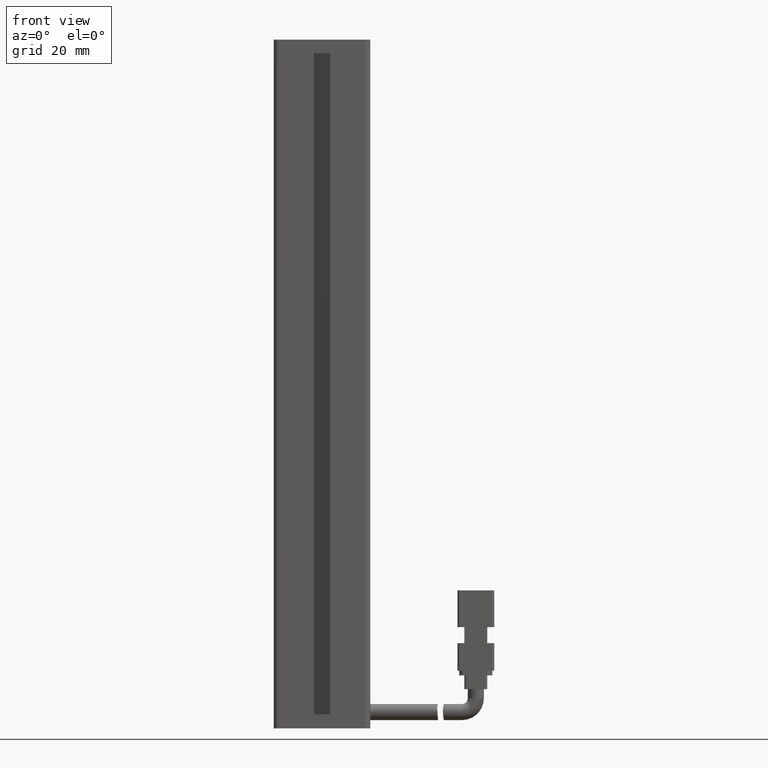
[diagram: clean part render]
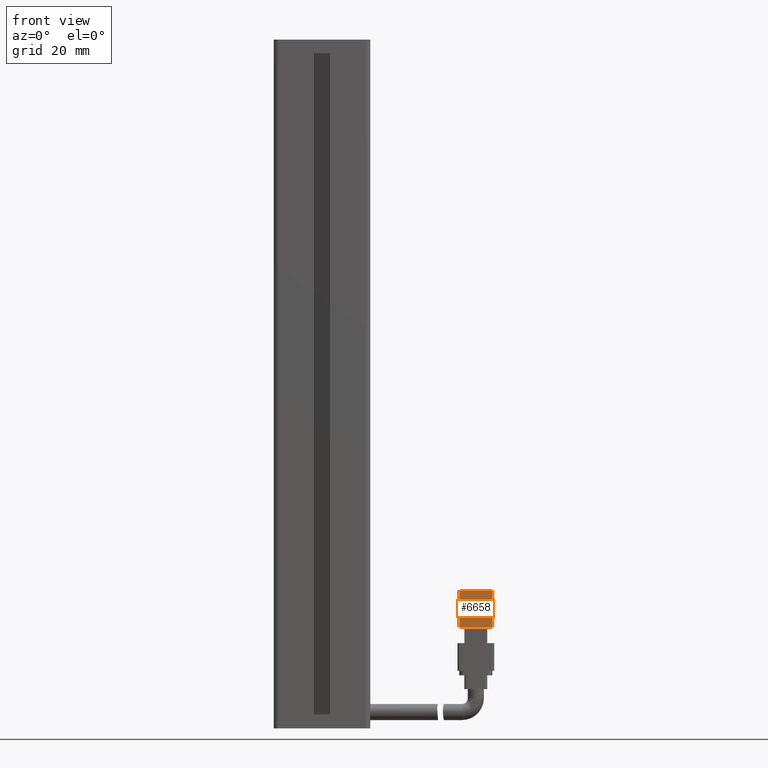
[diagram: same view with one face highlighted and labeled with its STEP entity id]
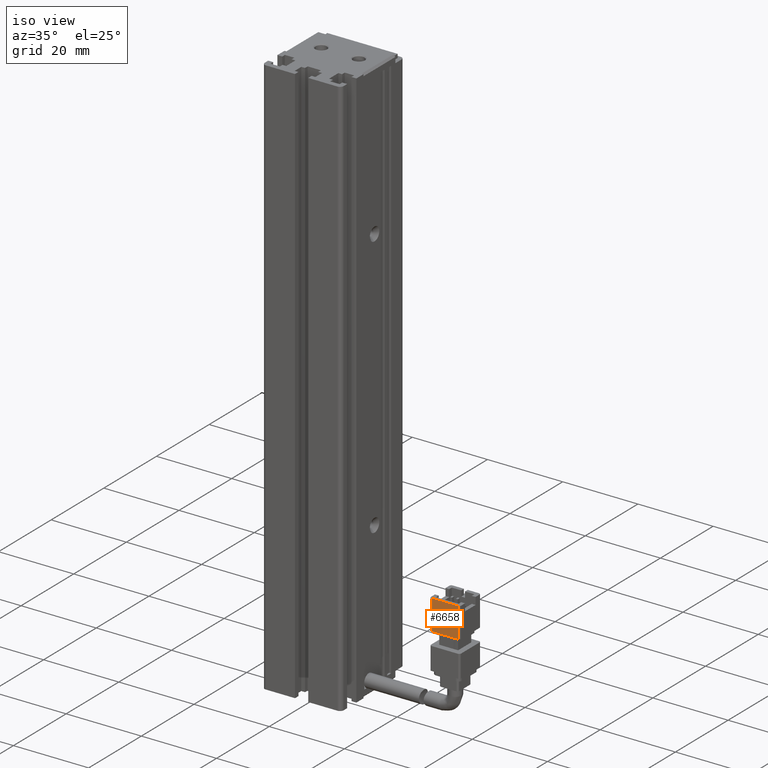
[diagram: same view with one face highlighted and labeled with its STEP entity id]
A machine part, front view. The second image highlights one B-rep face of the part: STEP entity #6658.
A second angle (iso view) of the same face is appended — the face is thin or edge-on in the first view.
In plain terms, the highlighted planar face has unit normal (-0, 1, -0).
Its self-contained STEP definition (entity closure, byte-faithful):
#959 = CARTESIAN_POINT ( 'NONE',  ( 70.92537974683537500, 17.49073232304856200, -167.9499999999999900 ) ) ;
#1141 = CARTESIAN_POINT ( 'NONE',  ( 70.92537974683537500, 17.49073232304856200, -159.9499999999999900 ) ) ;
#2621 = AXIS2_PLACEMENT_3D ( 'NONE', #33468, #20512, #14047 ) ;
#4903 = EDGE_CURVE ( 'NONE', #16003, #31685, #18718, .T. ) ;
#5905 = FACE_OUTER_BOUND ( 'NONE', #6610, .T. ) ;
#6610 = EDGE_LOOP ( 'NONE', ( #22791, #34509, #25055, #38688 ) ) ;
#6658 = ADVANCED_FACE ( 'NONE', ( #5905 ), #17485, .F. ) ;
#7723 = DIRECTION ( 'NONE',  ( 1.041348031262155300E-030, -5.551115123125780200E-017, -1.000000000000000000 ) ) ;
#7731 = EDGE_CURVE ( 'NONE', #38093, #8706, #37812, .T. ) ;
#8269 = CARTESIAN_POINT ( 'NONE',  ( 70.92537974683537500, 17.49073232304856200, -167.9499999999999900 ) ) ;
#8706 = VERTEX_POINT ( 'NONE', #35556 ) ;
#10359 = EDGE_CURVE ( 'NONE', #31685, #38093, #22424, .T. ) ;
#12167 = VECTOR ( 'NONE', #14045, 1000.000000000000000 ) ;
#14045 = DIRECTION ( 'NONE',  ( -1.000000000000000000, -3.180326372624140700E-015, -8.648044530266590200E-031 ) ) ;
#14047 = DIRECTION ( 'NONE',  ( 1.000000000000000000, 3.180326372624140700E-015, 8.648044530266590200E-031 ) ) ;
#16003 = VERTEX_POINT ( 'NONE', #16979 ) ;
#16356 = VECTOR ( 'NONE', #23562, 1000.000000000000000 ) ;
#16979 = CARTESIAN_POINT ( 'NONE',  ( 77.92537974683538900, 17.49073232304858300, -159.9499999999999900 ) ) ;
#17485 = PLANE ( 'NONE',  #2621 ) ;
#18718 = LINE ( 'NONE', #36654, #22847 ) ;
#20512 = DIRECTION ( 'NONE',  ( -3.180326372624140700E-015, 1.000000000000000000, -5.551115123125780200E-017 ) ) ;
#22007 = VECTOR ( 'NONE', #37490, 1000.000000000000000 ) ;
#22424 = LINE ( 'NONE', #959, #12167 ) ;
#22791 = ORIENTED_EDGE ( 'NONE', *, *, #4903, .F. ) ;
#22847 = VECTOR ( 'NONE', #7723, 1000.000000000000000 ) ;
#23562 = DIRECTION ( 'NONE',  ( -1.041348031262155300E-030, 5.551115123125780200E-017, 1.000000000000000000 ) ) ;
#25055 = ORIENTED_EDGE ( 'NONE', *, *, #7731, .F. ) ;
#27527 = CARTESIAN_POINT ( 'NONE',  ( 70.92537974683537500, 17.49073232304856200, -159.9499999999999900 ) ) ;
#31685 = VERTEX_POINT ( 'NONE', #38978 ) ;
#33047 = EDGE_CURVE ( 'NONE', #8706, #16003, #38784, .T. ) ;
#33468 = CARTESIAN_POINT ( 'NONE',  ( 70.92537974683537500, 17.49073232304856200, -159.9499999999999900 ) ) ;
#34509 = ORIENTED_EDGE ( 'NONE', *, *, #33047, .F. ) ;
#35556 = CARTESIAN_POINT ( 'NONE',  ( 70.92537974683537500, 17.49073232304856200, -159.9499999999999900 ) ) ;
#36654 = CARTESIAN_POINT ( 'NONE',  ( 77.92537974683538900, 17.49073232304858300, -159.9499999999999900 ) ) ;
#37490 = DIRECTION ( 'NONE',  ( 1.000000000000000000, 3.180326372624140700E-015, 8.648044530266590200E-031 ) ) ;
#37812 = LINE ( 'NONE', #1141, #16356 ) ;
#38093 = VERTEX_POINT ( 'NONE', #8269 ) ;
#38688 = ORIENTED_EDGE ( 'NONE', *, *, #10359, .F. ) ;
#38784 = LINE ( 'NONE', #27527, #22007 ) ;
#38978 = CARTESIAN_POINT ( 'NONE',  ( 77.92537974683538900, 17.49073232304858300, -167.9499999999999900 ) ) ;